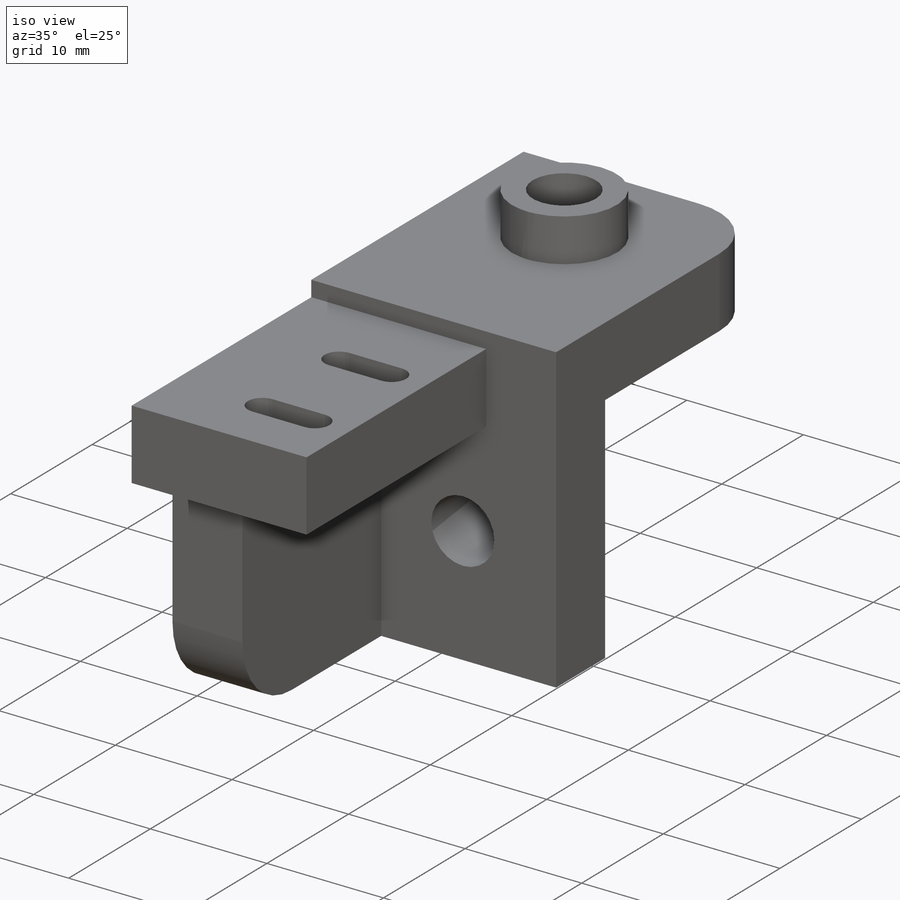
[diagram: iso view]
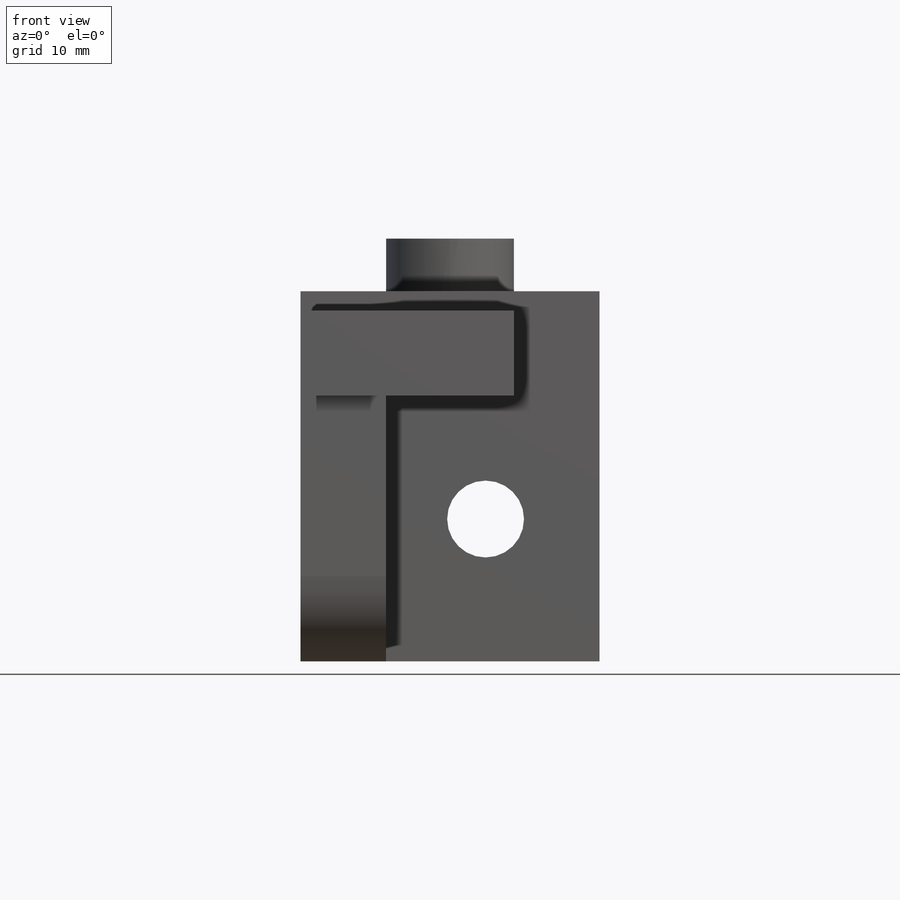
[diagram: front view]
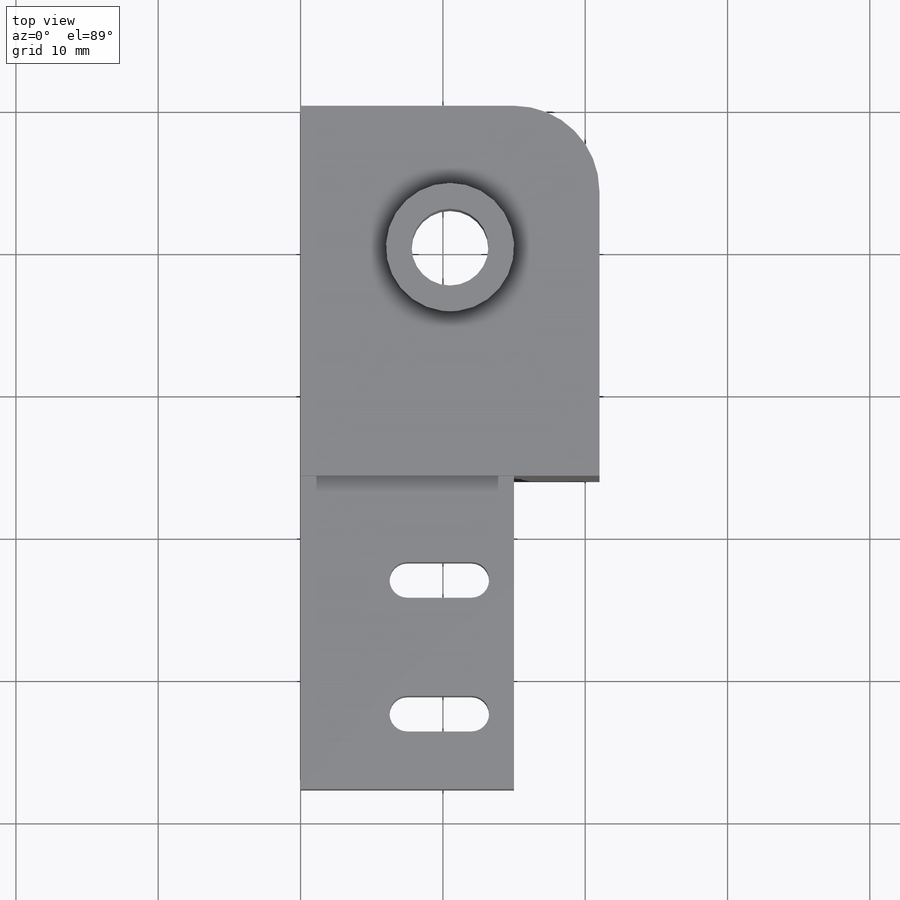
[diagram: top view]
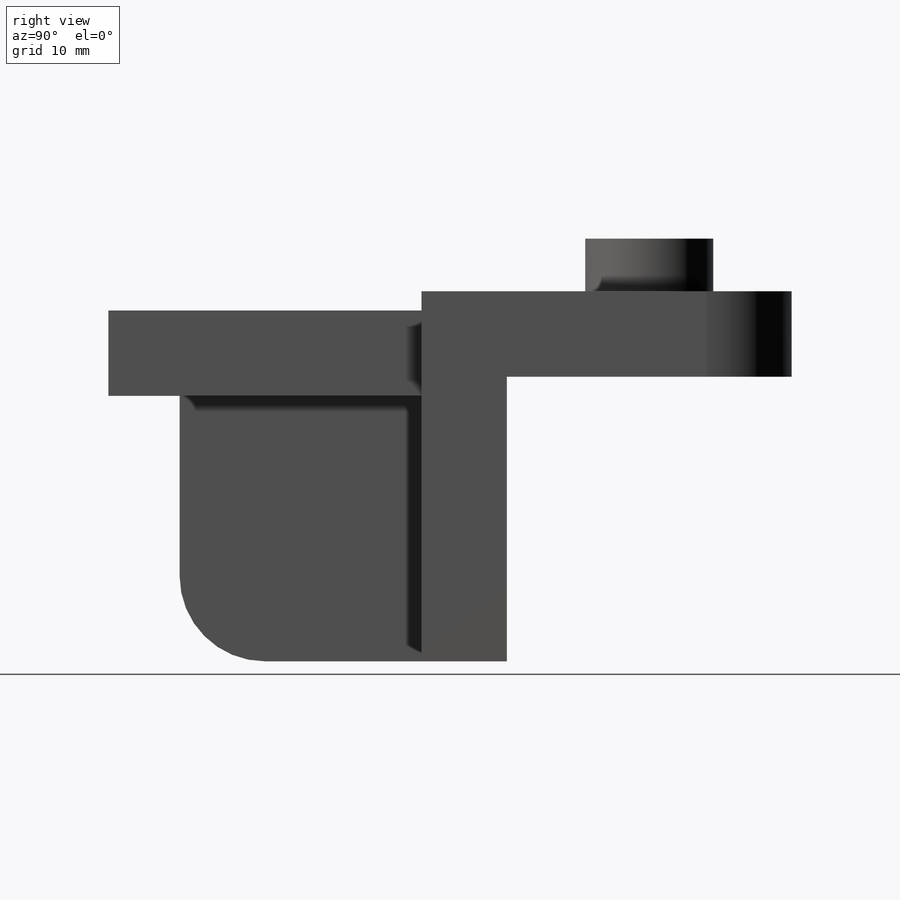
[diagram: right view]
SOLIDWORKS PART (.sldprt)
format: sldprt  version: not decoded by parser v0  size: 283,136 bytes
history: native  units: mm
features: sketch x8, extrude x6, plane x3, cut_extrude x2, fillet x2, material x1 (+9 scaffold rows collapsed)
feature tree (31):
  scaffold x9  (default folders/planes/origin — collapsed)
  material  "Materiał <nieokreślony>"
  plane  "Płaszczyzna przednia"
  plane  "Płaszczyzna górna"
  plane  "Płaszczyzna prawa"
  sketch  "Szkic1"  dims[D3=5.4mm D1=20.0mm D2=21.0mm D4=10.0mm D5=8.0mm D6=6.0mm]
  extrude  "Dodanie-wyciągnięcie1"  Depth=6mm
  sketch  "Szkic2"  dims[D1=6.0mm]
  extrude  "Dodanie-wyciągnięcie2"  Depth=20mm
  sketch  "Szkic3"  dims[D3=5.4mm D1=10.5mm D2=10.0mm D4=15.0mm]
  cut_extrude  "Wytnij-wyciągnięcie1"  Depth=9mm
  sketch  "Szkic4"  dims[D1=24.65mm D2=6.0mm D3=15.0mm]
  extrude  "Dodanie-wyciągnięcie3"  Depth=22mm
  sketch  "Szkic8"  dims[D1=9.0mm D2=5.4mm]
  extrude  "Dodanie-wyciągnięcie6"  Depth=3.7mm
  sketch  "Szkic9"  dims[D1=6.0mm]
  extrude  "Dodanie-wyciągnięcie7"  Depth=17mm
  fillet  "Zaokrąglenie3"  Radius=6mm
  sketch  "Szkic12"  dims[D1=1.25mm D2=4.5mm D3=3.0mm D4=6.05mm D5=3.45mm]
  cut_extrude  "Wytnij-wyciągnięcie2"  Depth=22mm
  fillet  "Zaokrąglenie4"  Radius=6mm
  sketch  "Szkic6"  dims[D1=5.4mm D2=9.0mm]
  extrude  "Dodanie-wyciągnięcie5"  Depth=3.7mm
decode coverage: 18 of 18 modeling features carry decoded parameters
note: suppression state not decoded; provenance and decode notes live in map.json
